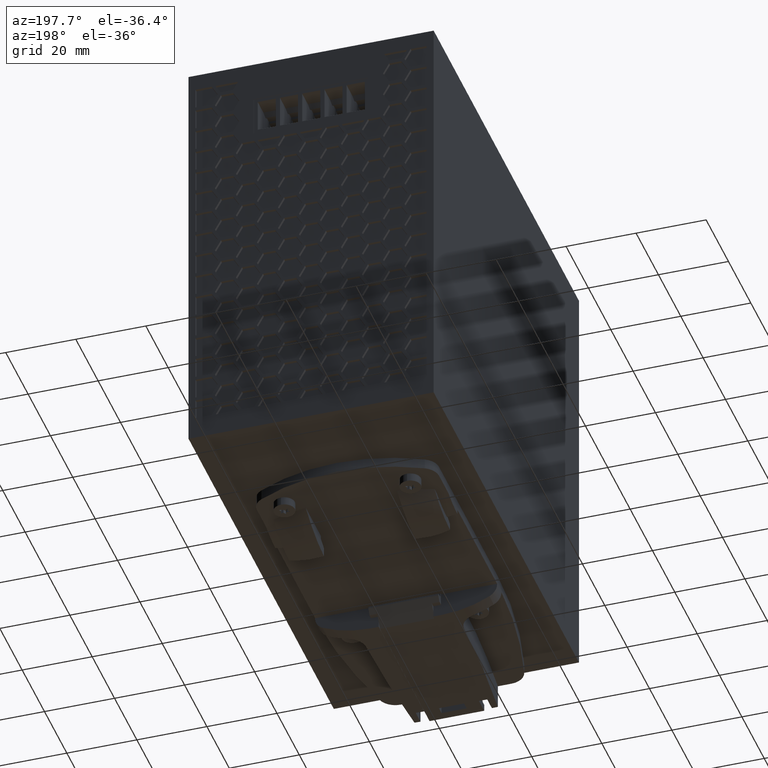
[diagram: clean part render]
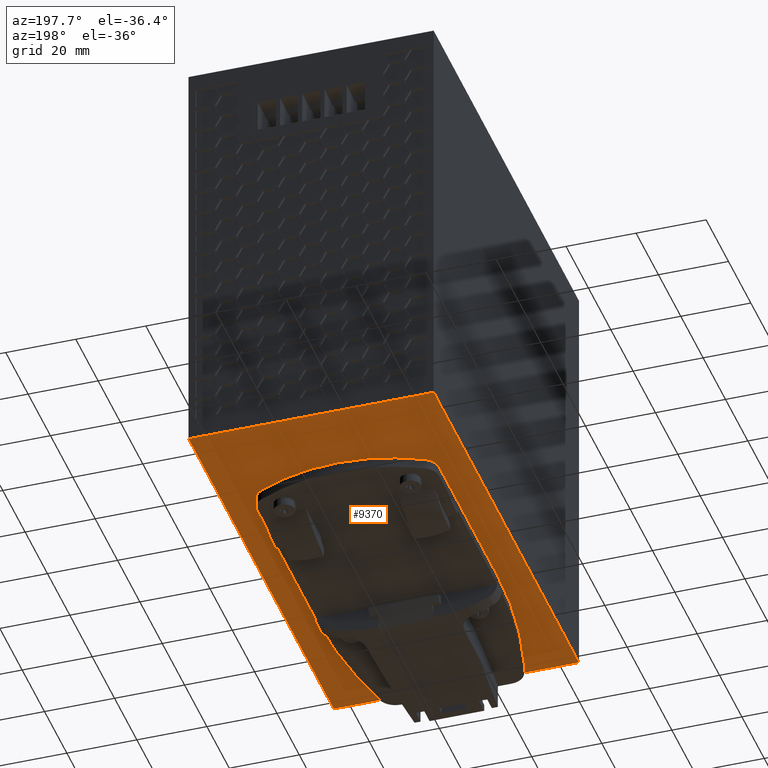
[diagram: same view with one face highlighted and labeled with its STEP entity id]
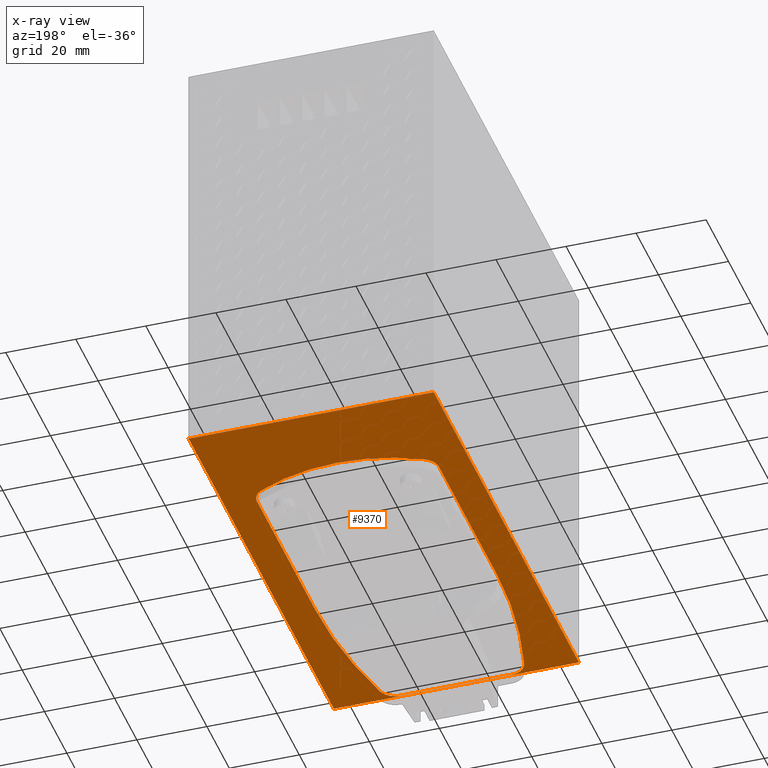
[diagram: x-ray of the same camera — body ghosted, the highlighted face saturated]
A machine part, auxiliary view. The second image highlights one B-rep face of the part: STEP entity #9370.
The next image is the same camera in x-ray: the body ghosted, the highlighted face saturated — about 0% of this face is hidden behind the body in this view.
In plain terms, the highlighted planar face has unit normal (0, 0, -1).
Its self-contained STEP definition (entity closure, byte-faithful):
#7490=CARTESIAN_POINT('',(70.,0.0999999999916668,129.146849890801));
#7500=VERTEX_POINT('',#7490);
#7670=CARTESIAN_POINT('',(70.,0.0999999999916668,-0.853150109198594));
#7680=VERTEX_POINT('',#7670);
#7710=CARTESIAN_POINT('',(70.,0.0999999999916668,0.));
#7720=DIRECTION('',(0.,0.,1.));
#7730=VECTOR('',#7720,1.);
#7740=LINE('',#7710,#7730);
#7750=EDGE_CURVE('',#7680,#7500,#7740,.T.);
#8180=CARTESIAN_POINT('',(2.5,0.0999999999916668,-0.0531501091985831));
#8190=DIRECTION('',(0.,-1.,0.));
#8200=DIRECTION('',(1.,0.,0.));
#8210=AXIS2_PLACEMENT_3D('',#8180,#8190,#8200);
#8220=PLANE('',#8210);
#8230=CARTESIAN_POINT('',(169.,0.0999999999916668,84.0968498908014));
#8240=DIRECTION('',(0.,-1.,0.));
#8250=DIRECTION('',(0.,0.,1.));
#8260=AXIS2_PLACEMENT_3D('',#8230,#8240,#8250);
#8270=CIRCLE('',#8260,160.);
#8280=CARTESIAN_POINT('',(14.3782939988653,0.0999999999916543,
125.232333761769));
#8290=VERTEX_POINT('',#8280);
#8300=CARTESIAN_POINT('',(9.,0.0999999999916543,84.0968498908014));
#8310=VERTEX_POINT('',#8300);
#8320=EDGE_CURVE('',#8290,#8310,#8270,.T.);
#8330=ORIENTED_EDGE('',*,*,#8320,.F.);
#8340=CARTESIAN_POINT('',(9.,0.0999999999916668,0.));
#8350=DIRECTION('',(0.,0.,-1.));
#8360=VECTOR('',#8350,1.);
#8370=LINE('',#8340,#8360);
#8380=CARTESIAN_POINT('',(9.,0.0999999999916668,32.1473524065367));
#8390=VERTEX_POINT('',#8380);
#8400=EDGE_CURVE('',#8310,#8390,#8370,.T.);
#8410=ORIENTED_EDGE('',*,*,#8400,.F.);
#8420=CARTESIAN_POINT('',(14.,0.0999999999916668,32.1473524065367));
#8430=DIRECTION('',(0.,-1.,0.));
#8440=DIRECTION('',(-1.,0.,0.));
#8450=AXIS2_PLACEMENT_3D('',#8420,#8430,#8440);
#8460=CIRCLE('',#8450,5.);
#8470=CARTESIAN_POINT('',(11.6666666666667,0.0999999999916668,
27.7251860193961));
#8480=VERTEX_POINT('',#8470);
#8490=EDGE_CURVE('',#8390,#8480,#8460,.T.);
#8500=ORIENTED_EDGE('',*,*,#8490,.F.);
#8510=CARTESIAN_POINT('',(35.0000000000001,0.0999999999916668,
71.9468498908014));
#8520=DIRECTION('',(0.,-1.,0.));
#8530=DIRECTION('',(-1.,0.,0.));
#8540=AXIS2_PLACEMENT_3D('',#8510,#8520,#8530);
#8550=CIRCLE('',#8540,50.);
#8560=CARTESIAN_POINT('',(58.3333333333333,0.0999999999916668,
27.7251860193961));
#8570=VERTEX_POINT('',#8560);
#8580=EDGE_CURVE('',#8480,#8570,#8550,.T.);
#8590=ORIENTED_EDGE('',*,*,#8580,.F.);
#8600=CARTESIAN_POINT('',(56.,0.0999999999916668,32.1473524065366));
#8610=DIRECTION('',(0.,-1.,0.));
#8620=DIRECTION('',(-1.,0.,0.));
#8630=AXIS2_PLACEMENT_3D('',#8600,#8610,#8620);
#8640=CIRCLE('',#8630,5.);
#8650=CARTESIAN_POINT('',(61.,0.0999999999916668,32.1473524065366));
#8660=VERTEX_POINT('',#8650);
#8670=EDGE_CURVE('',#8570,#8660,#8640,.T.);
#8680=ORIENTED_EDGE('',*,*,#8670,.F.);
#8690=CARTESIAN_POINT('',(61.,0.0999999999916668,0.));
#8700=DIRECTION('',(0.,0.,-1.));
#8710=VECTOR('',#8700,1.);
#8720=LINE('',#8690,#8710);
#8730=CARTESIAN_POINT('',(61.,0.0999999999916543,84.0968498908014));
#8740=VERTEX_POINT('',#8730);
#8750=EDGE_CURVE('',#8740,#8660,#8720,.T.);
#8760=ORIENTED_EDGE('',*,*,#8750,.T.);
#8770=CARTESIAN_POINT('',(-99.,0.0999999999916668,84.0968498908014));
#8780=DIRECTION('',(0.,-1.,0.));
#8790=DIRECTION('',(0.,0.,1.));
#8800=AXIS2_PLACEMENT_3D('',#8770,#8780,#8790);
#8810=CIRCLE('',#8800,160.);
#8820=CARTESIAN_POINT('',(55.6217060011348,0.0999999999916543,
125.232333761769));
#8830=VERTEX_POINT('',#8820);
#8840=EDGE_CURVE('',#8740,#8830,#8810,.T.);
#8850=ORIENTED_EDGE('',*,*,#8840,.F.);
#8860=CARTESIAN_POINT('',(50.7897776885993,0.0999999999916668,
123.946849890801));
#8870=DIRECTION('',(0.,-1.,0.));
#8880=DIRECTION('',(-1.,0.,0.));
#8890=AXIS2_PLACEMENT_3D('',#8860,#8870,#8880);
#8900=CIRCLE('',#8890,5.);
#8910=CARTESIAN_POINT('',(50.7897776885993,0.0999999999916668,
128.946849890801));
#8920=VERTEX_POINT('',#8910);
#8930=EDGE_CURVE('',#8830,#8920,#8900,.T.);
#8940=ORIENTED_EDGE('',*,*,#8930,.F.);
#8950=CARTESIAN_POINT('',(0.,0.0999999999916668,128.946849890801));
#8960=DIRECTION('',(-1.,0.,0.));
#8970=VECTOR('',#8960,1.);
#8980=LINE('',#8950,#8970);
#8990=CARTESIAN_POINT('',(19.2102223114007,0.0999999999916668,
128.946849890801));
#9000=VERTEX_POINT('',#8990);
#9010=EDGE_CURVE('',#8920,#9000,#8980,.T.);
#9020=ORIENTED_EDGE('',*,*,#9010,.F.);
#9030=CARTESIAN_POINT('',(19.2102223114007,0.0999999999916668,
123.946849890801));
#9040=DIRECTION('',(0.,-1.,0.));
#9050=DIRECTION('',(-1.,0.,0.));
#9060=AXIS2_PLACEMENT_3D('',#9030,#9040,#9050);
#9070=CIRCLE('',#9060,5.);
#9080=EDGE_CURVE('',#9000,#8290,#9070,.T.);
#9090=ORIENTED_EDGE('',*,*,#9080,.F.);
#9100=EDGE_LOOP('',(#9090,#9020,#8940,#8850,#8760,#8680,#8590,#8500,
#8410,#8330));
#9110=FACE_BOUND('',#9100,.T.);
#9120=ORIENTED_EDGE('',*,*,#7750,.T.);
#9130=CARTESIAN_POINT('',(0.,0.0999999999916668,-0.853150109198594));
#9140=DIRECTION('',(-1.,0.,0.));
#9150=VECTOR('',#9140,1.);
#9160=LINE('',#9130,#9150);
#9170=CARTESIAN_POINT('',(0.,0.0999999999916668,-0.853150109198594));
#9180=VERTEX_POINT('',#9170);
#9190=EDGE_CURVE('',#7680,#9180,#9160,.T.);
#9200=ORIENTED_EDGE('',*,*,#9190,.F.);
#9210=CARTESIAN_POINT('',(0.,0.0999999999916668,0.));
#9220=DIRECTION('',(0.,0.,1.));
#9230=VECTOR('',#9220,1.);
#9240=LINE('',#9210,#9230);
#9250=CARTESIAN_POINT('',(0.,0.0999999999916668,129.146849890801));
#9260=VERTEX_POINT('',#9250);
#9270=EDGE_CURVE('',#9180,#9260,#9240,.T.);
#9280=ORIENTED_EDGE('',*,*,#9270,.F.);
#9290=CARTESIAN_POINT('',(0.,0.0999999999916668,129.146849890801));
#9300=DIRECTION('',(-1.,0.,0.));
#9310=VECTOR('',#9300,1.);
#9320=LINE('',#9290,#9310);
#9330=EDGE_CURVE('',#7500,#9260,#9320,.T.);
#9340=ORIENTED_EDGE('',*,*,#9330,.T.);
#9350=EDGE_LOOP('',(#9340,#9280,#9200,#9120));
#9360=FACE_OUTER_BOUND('',#9350,.T.);
#9370=ADVANCED_FACE('',(#9110,#9360),#8220,.T.);